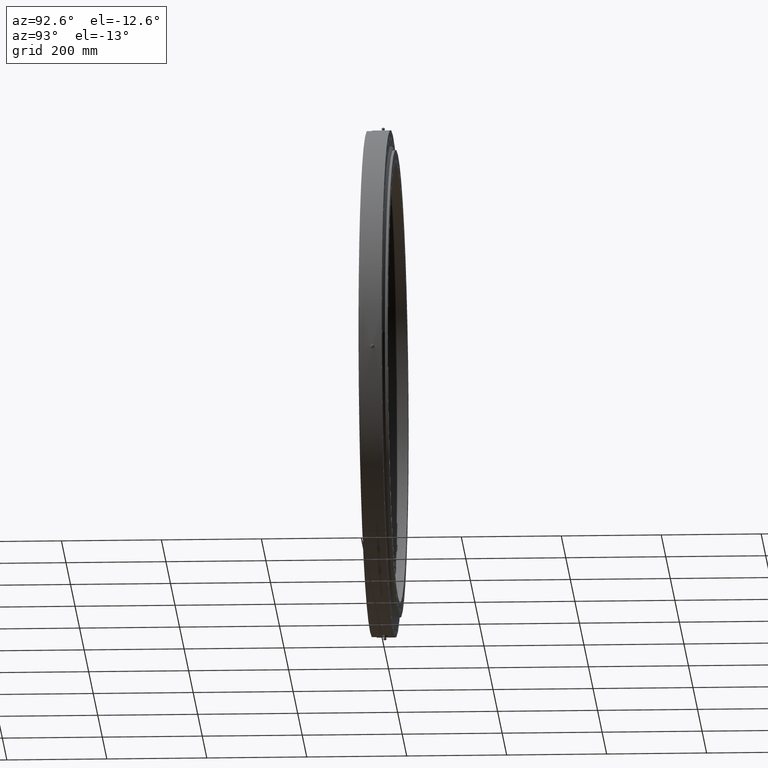
[diagram: clean part render]
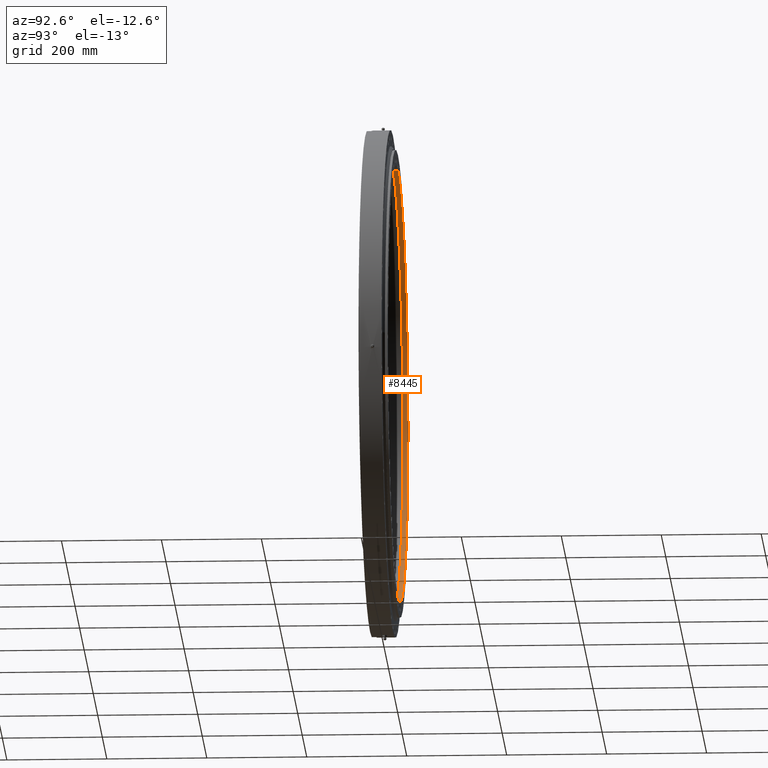
[diagram: same view with one face highlighted and labeled with its STEP entity id]
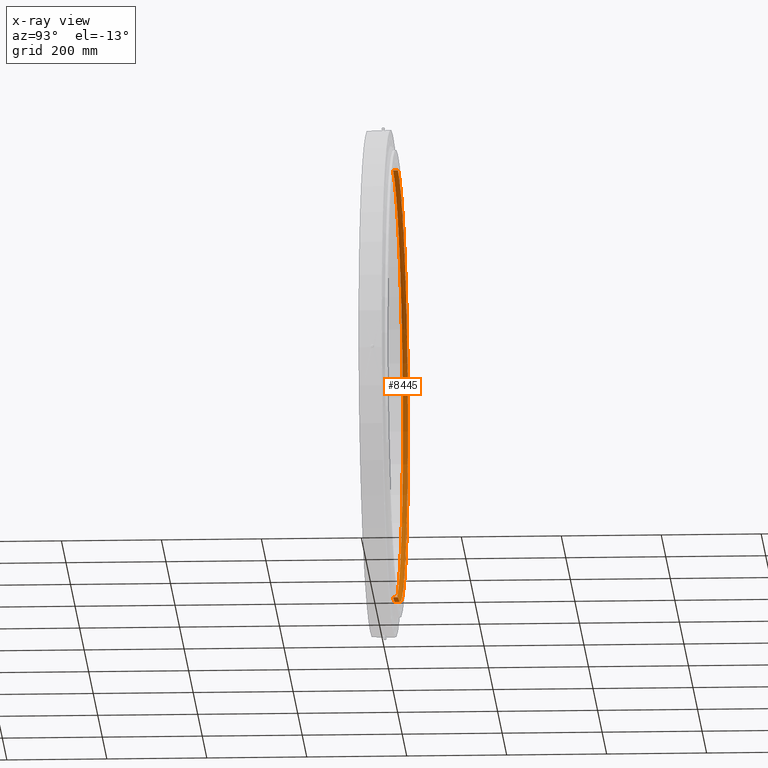
[diagram: x-ray of the same camera — body ghosted, the highlighted face saturated]
A machine part, auxiliary view. The second image highlights one B-rep face of the part: STEP entity #8445.
The next image is the same camera in x-ray: the body ghosted, the highlighted face saturated — about 0% of this face is hidden behind the body in this view.
In plain terms, the highlighted cylindrical surface (partial cylindrical patch) has radius 437 mm, axis along (-0, 1, -0).
Its self-contained STEP definition (entity closure, byte-faithful):
#92 = DIRECTION ( 'NONE',  ( -0.0000000000000000000, 1.000000000000000000, -0.0000000000000000000 ) ) ;
#132 = CARTESIAN_POINT ( 'NONE',  ( 0.0000000000000000000, 70.62343277129268400, 0.0000000000000000000 ) ) ;
#359 = CIRCLE ( 'NONE', #5304, 437.0000000000000600 ) ;
#781 = LINE ( 'NONE', #10783, #4843 ) ;
#804 = CARTESIAN_POINT ( 'NONE',  ( 0.0000000000000000000, 70.62343277129268400, 437.0000000000000600 ) ) ;
#933 = CARTESIAN_POINT ( 'NONE',  ( 0.0000000000000000000, 17.99999999999996800, 0.0000000000000000000 ) ) ;
#1697 = EDGE_CURVE ( 'NONE', #7610, #5344, #2682, .T. ) ;
#1786 = DIRECTION ( 'NONE',  ( 0.0000000000000000000, 0.0000000000000000000, 1.000000000000000000 ) ) ;
#1943 = ORIENTED_EDGE ( 'NONE', *, *, #7356, .F. ) ;
#2142 = VECTOR ( 'NONE', #3390, 1000.000000000000000 ) ;
#2682 = LINE ( 'NONE', #804, #2142 ) ;
#3186 = CARTESIAN_POINT ( 'NONE',  ( 0.0000000000000000000, 27.99999999999998200, 0.0000000000000000000 ) ) ;
#3390 = DIRECTION ( 'NONE',  ( -0.0000000000000000000, 1.000000000000000000, -0.0000000000000000000 ) ) ;
#3529 = CYLINDRICAL_SURFACE ( 'NONE', #3643, 437.0000000000000600 ) ;
#3643 = AXIS2_PLACEMENT_3D ( 'NONE', #132, #92, #6200 ) ;
#3686 = EDGE_CURVE ( 'NONE', #5226, #8624, #781, .T. ) ;
#4066 = DIRECTION ( 'NONE',  ( 0.0000000000000000000, -2.381771362897217700E-017, -1.000000000000000000 ) ) ;
#4843 = VECTOR ( 'NONE', #6401, 1000.000000000000000 ) ;
#5226 = VERTEX_POINT ( 'NONE', #9754 ) ;
#5304 = AXIS2_PLACEMENT_3D ( 'NONE', #3186, #9306, #4066 ) ;
#5344 = VERTEX_POINT ( 'NONE', #5485 ) ;
#5485 = CARTESIAN_POINT ( 'NONE',  ( 0.0000000000000000000, 27.99999999999999300, 437.0000000000000600 ) ) ;
#6200 = DIRECTION ( 'NONE',  ( 0.0000000000000000000, 0.0000000000000000000, 1.000000000000000000 ) ) ;
#6401 = DIRECTION ( 'NONE',  ( -0.0000000000000000000, 1.000000000000000000, -0.0000000000000000000 ) ) ;
#6681 = CIRCLE ( 'NONE', #10318, 437.0000000000001100 ) ;
#7021 = DIRECTION ( 'NONE',  ( -0.0000000000000000000, 1.000000000000000000, -0.0000000000000000000 ) ) ;
#7101 = ORIENTED_EDGE ( 'NONE', *, *, #1697, .F. ) ;
#7343 = ORIENTED_EDGE ( 'NONE', *, *, #8409, .F. ) ;
#7356 = EDGE_CURVE ( 'NONE', #5344, #8624, #359, .T. ) ;
#7610 = VERTEX_POINT ( 'NONE', #10615 ) ;
#8186 = FACE_OUTER_BOUND ( 'NONE', #11062, .T. ) ;
#8409 = EDGE_CURVE ( 'NONE', #5226, #7610, #6681, .T. ) ;
#8426 = ORIENTED_EDGE ( 'NONE', *, *, #3686, .T. ) ;
#8445 = ADVANCED_FACE ( 'NONE', ( #8186 ), #3529, .F. ) ;
#8624 = VERTEX_POINT ( 'NONE', #9967 ) ;
#9306 = DIRECTION ( 'NONE',  ( 0.0000000000000000000, -1.000000000000000000, 2.727064569436389700E-017 ) ) ;
#9754 = CARTESIAN_POINT ( 'NONE',  ( 5.351706512273935400E-014, 17.99999999999996800, -437.0000000000001700 ) ) ;
#9967 = CARTESIAN_POINT ( 'NONE',  ( 5.351706512273934200E-014, 27.99999999999997200, -437.0000000000000600 ) ) ;
#10318 = AXIS2_PLACEMENT_3D ( 'NONE', #933, #7021, #1786 ) ;
#10615 = CARTESIAN_POINT ( 'NONE',  ( 0.0000000000000000000, 17.99999999999996800, 437.0000000000001100 ) ) ;
#10783 = CARTESIAN_POINT ( 'NONE',  ( 5.351706512273934200E-014, 70.62343277129268400, -437.0000000000000600 ) ) ;
#11062 = EDGE_LOOP ( 'NONE', ( #7343, #8426, #1943, #7101 ) ) ;